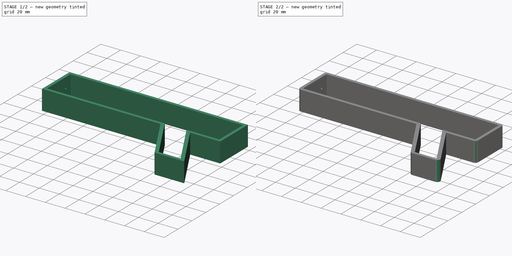
[diagram: build sequence overview — one tinted view per stage of 2, left to right]
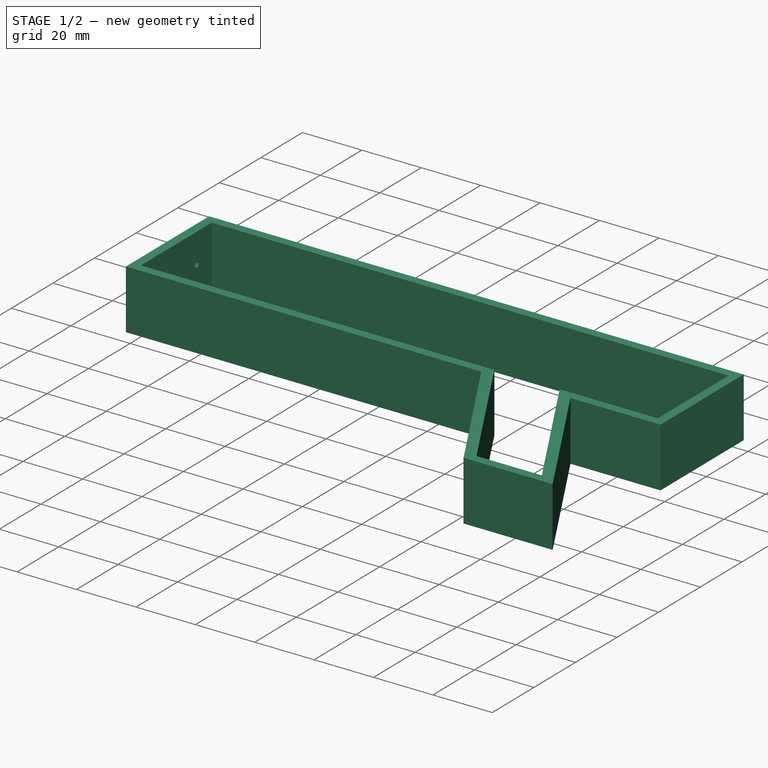
[diagram: stage 1 of 2 — iso view after this stage's code; geometry added in this stage tinted green]
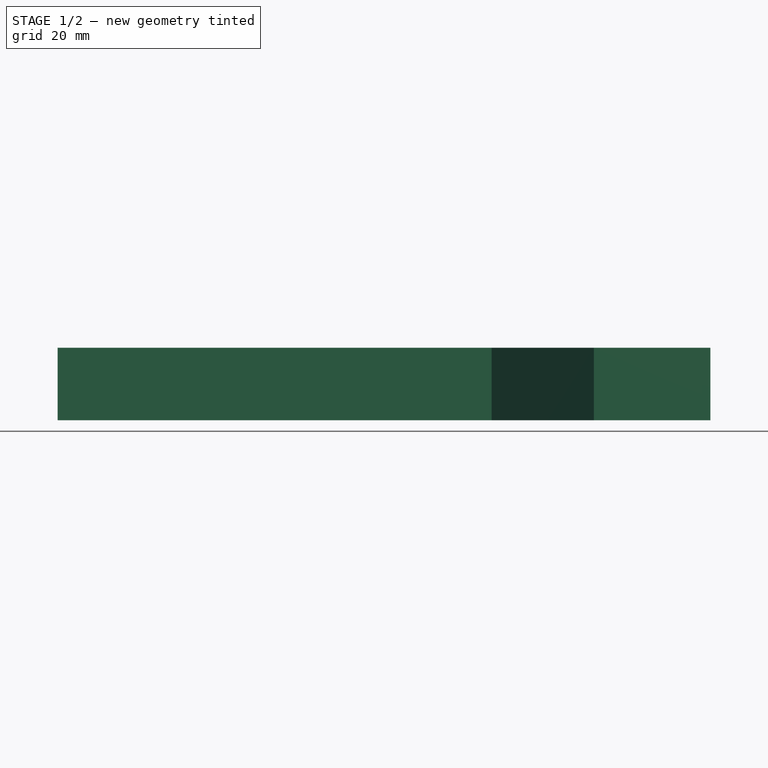
[diagram: stage 1 of 2 — front view after this stage's code; geometry added in this stage tinted green]
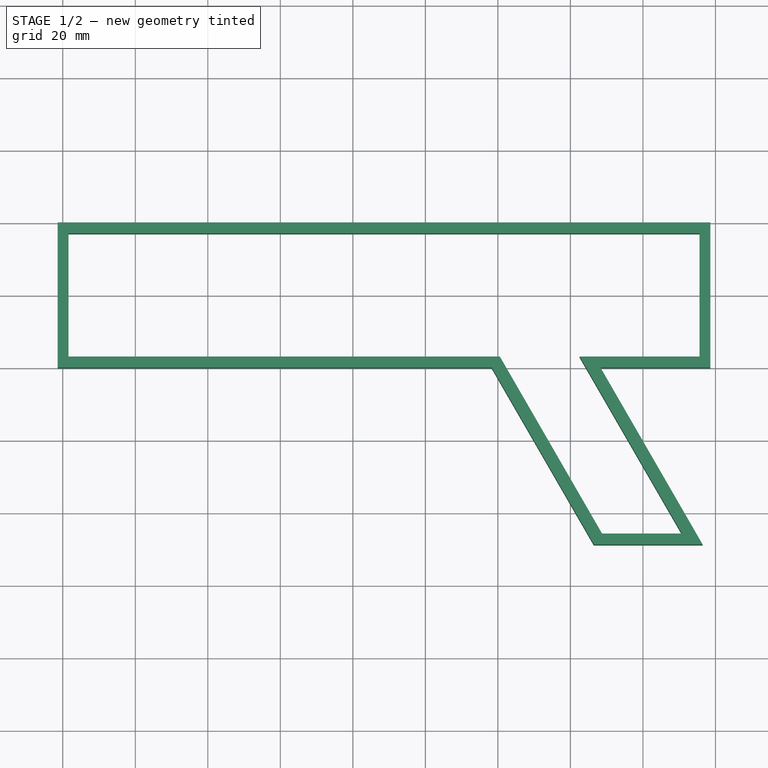
[diagram: stage 1 of 2 — top view after this stage's code; geometry added in this stage tinted green]
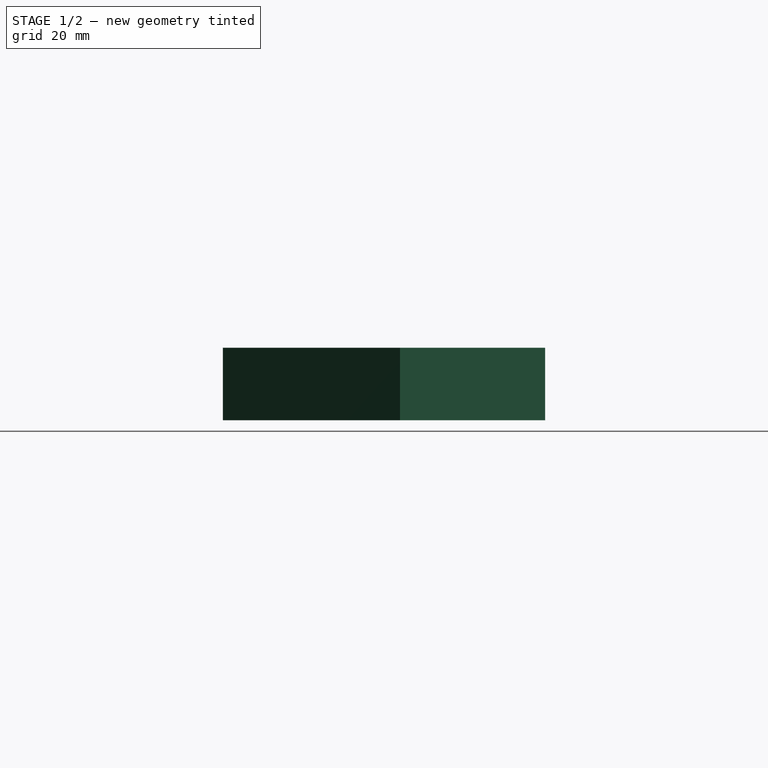
[diagram: stage 1 of 2 — right view after this stage's code; geometry added in this stage tinted green]
FCSTD DOCUMENT  (FreeCAD 0.15R4671 (Git))
Label: Lasertag
License: All rights reserved
LicenseURL: http://en.wikipedia.org/wiki/All_rights_reserved
objects: Sketcher::SketchObject×2, PartDesign::Pad×1, App::MeasureDistance×1, PartDesign::Pocket×1, PartDesign::Fillet×1
note: 7 computed .brp shape members not serialized (recipe doc carries the construction recipe); baked Part::Feature solids carry a one-line shape summary decoded from their .brp

FEATURE [Sketcher::SketchObject] Sketch
  sketch-geometry (25):
    g0: LineSegment StartX=58.5905 StartY=0 StartZ=0 EndX=58.5905 EndY=40 EndZ=0
    g1: LineSegment StartX=58.5905 StartY=40 StartZ=0 EndX=-121.41 EndY=40 EndZ=0
    g2: LineSegment StartX=-121.41 StartY=40 StartZ=0 EndX=-121.41 EndY=0 EndZ=0
    g3: LineSegment StartX=28.2664 StartY=0 StartZ=0 EndX=56.4701 EndY=-48.8503 EndZ=0
    g4: LineSegment StartX=56.4701 StartY=-48.8503 StartZ=0 EndX=26.4701 EndY=-48.8503 EndZ=0
    g5: LineSegment StartX=26.4701 StartY=-48.8503 StartZ=0 EndX=-1.7336 EndY=0 EndZ=0
    g6: LineSegment [constr] StartX=56.4701 StartY=0 StartZ=0 EndX=56.4701 EndY=-73.0799 EndZ=0
    g7: LineSegment StartX=-118.41 StartY=37 StartZ=0 EndX=55.5905 EndY=37 EndZ=0
    g8: LineSegment StartX=55.5905 StartY=37 StartZ=0 EndX=55.5905 EndY=3 EndZ=0
    g9: LineSegment StartX=55.5905 StartY=3 StartZ=0 EndX=22.5344 EndY=3 EndZ=0
    g10: LineSegment StartX=22.5344 StartY=3 StartZ=0 EndX=50.7381 EndY=-45.8503 EndZ=0
    g11: LineSegment StartX=50.7381 StartY=-45.8503 StartZ=0 EndX=28.7381 EndY=-45.8503 EndZ=0
    g12: LineSegment StartX=28.7381 StartY=-45.8503 StartZ=0 EndX=0.534352 EndY=3 EndZ=0
    g13: LineSegment StartX=0.534352 StartY=3 StartZ=0 EndX=-118.41 EndY=3 EndZ=0
    g14: LineSegment StartX=-118.41 StartY=3 StartZ=0 EndX=-118.41 EndY=37 EndZ=0
    g15: LineSegment [constr] StartX=-118.41 StartY=24.9388 StartZ=0 EndX=-121.41 EndY=24.9388 EndZ=0
    g16: LineSegment [constr] StartX=-75.524 StartY=37 StartZ=0 EndX=-75.524 EndY=40 EndZ=0
    g17: LineSegment [constr] StartX=4.74691 StartY=-11.2246 StartZ=0 EndX=7.74691 EndY=-9.49252 EndZ=0
    g18: LineSegment [constr] StartX=35.867 StartY=-20.0929 StartZ=0 EndX=38.867 EndY=-18.3609 EndZ=0
    g19: LineSegment [constr] StartX=55.5905 StartY=9.67422 StartZ=0 EndX=58.5905 EndY=9.67422 EndZ=0
    g20: LineSegment [constr] StartX=41.3778 StartY=-45.8503 StartZ=0 EndX=41.3778 EndY=-48.8503 EndZ=0
    g21: LineSegment StartX=58.5905 StartY=0 StartZ=0 EndX=28.2664 EndY=0 EndZ=0
    g22: LineSegment StartX=-121.41 StartY=0 StartZ=0 EndX=-1.7336 EndY=0 EndZ=0
    g23: LineSegment [constr] StartX=-30.1339 StartY=3 StartZ=0 EndX=-30.1339 EndY=0 EndZ=0
    g24: LineSegment [constr] StartX=42.3491 StartY=3 StartZ=0 EndX=42.3491 EndY=0 EndZ=0
  constraints (70):
    c: Coincident(g0,g1)
    c: Coincident(g1,g2)
    c: Horizontal(g1)
    c: Vertical(g0)
    c: Vertical(g2)
    c: PointOnObject(g2,g-1)
    c: DistanceX(g1) = -180
    c: Coincident(g3,g4)
    c: Horizontal(g4)
    c: Coincident(g4,g5)
    c: Parallel(g3,g5)
    c: DistanceX(g4) = -30
    c: DistanceX(g5,g3) = 30
    c: Vertical(g6)
    c: PointOnObject(g3,g6)
    c: Horizontal(g7)
    c: Coincident(g7,g8)
    c: Vertical(g8)
    c: Coincident(g8,g9)
    c: Horizontal(g9)
    c: Coincident(g9,g10)
    c: Coincident(g10,g11)
    c: Horizontal(g11)
    c: Coincident(g11,g12)
    c: Coincident(g12,g13)
    c: Horizontal(g13)
    c: Coincident(g13,g14)
    c: Coincident(g14,g7)
    c: Parallel(g8,g14)
    c: PointOnObject(g15,g14)
    c: PointOnObject(g16,g7)
    c: PointOnObject(g16,g1)
    c: PointOnObject(g15,g2)
    c: Vertical(g16)
    c: DistanceX(g15) = -3
    c: DistanceY(g16) = 3
    c: PointOnObject(g17,g5)
    c: PointOnObject(g17,g12)
    c: DistanceX(g17) = 3
    c: Parallel(g5,g12)
    c: PointOnObject(g18,g10)
    c: PointOnObject(g18,g3)
    c: DistanceX(g18) = 3
    c: PointOnObject(g19,g8)
    c: PointOnObject(g19,g0)
    c: Horizontal(g19)
    c: DistanceX(g19) = 3
    c: Perpendicular(g5,g17)
    c: Perpendicular(g18,g3)
    c: PointOnObject(g20,g11)
    c: Vertical(g20)
    c: PointOnObject(g20,g4)
    c: DistanceY(g20) = -3
    c: Coincident(g21,g0)
    c: Coincident(g21,g3)
    c: Horizontal(g21)
    c: Coincident(g22,g2)
    c: Coincident(g22,g5)
    c: Horizontal(g22)
    c: Angle(g3,g21) = 1.0472
    c: PointOnObject(g23,g13)
    c: PointOnObject(g23,g22)
    c: PointOnObject(g24,g9)
    c: PointOnObject(g24,g21)
    c: DistanceY(g24) = -3
    c: Vertical(g24)
    c: Vertical(g23)
    c: DistanceY(g23) = -3
    c: DistanceY(g1,g2) = -40
    c: Parallel(g10,g3)
FEATURE [PartDesign::Pad] Pad
  Length = 20
  Length2 = 100
  Sketch = -> Sketch
  Type = 0
FEATURE [App::MeasureDistance] Distance  label="Distance: 56.445"
  Distance = 56.4447
  P1 = (-1.80796,0,20)
  P2 = (26.4701,-48.8503,20)
FEATURE [Sketcher::SketchObject] Sketch001
  ExternalGeometry = -> [Pad]
  Placement = pos=(-121.41,0,0) rot=(0.57735,-0.57735,-0.57735;2.0944rad)
  Support = -> Pad [Face4]
  sketch-geometry (6):
    g0: Circle CenterX=-30 CenterY=10 CenterZ=0 NormalX=0 NormalY=0 NormalZ=1 Radius=1
    g1: Circle CenterX=-10 CenterY=10 CenterZ=0 NormalX=0 NormalY=0 NormalZ=1 Radius=5
    g2: LineSegment [constr] StartX=-30 StartY=10 StartZ=0 EndX=-40 EndY=10 EndZ=0
    g3: LineSegment [constr] StartX=-10 StartY=10 StartZ=0 EndX=0 EndY=10 EndZ=0
    g4: LineSegment [constr] StartX=-10 StartY=20 StartZ=0 EndX=-10 EndY=10 EndZ=0
    g5: LineSegment [constr] StartX=-30 StartY=10 StartZ=0 EndX=-30 EndY=20 EndZ=0
  constraints (17):
    c: Radius(g0) = 1
    c: Radius(g1) = 5
    c: Coincident(g2,g0)
    c: PointOnObject(g2,g-3)
    c: Horizontal(g2)
    c: DistanceX(g2) = -10
    c: Coincident(g3,g1)
    c: PointOnObject(g3,g-4)
    c: Horizontal(g3)
    c: DistanceX(g3) = 10
    c: PointOnObject(g4,g-5)
    c: Coincident(g4,g1)
    c: Vertical(g4)
    c: DistanceY(g4) = -10
    c: Coincident(g5,g0)
    c: PointOnObject(g5,g-5)
    c: Vertical(g5)
FEATURE [PartDesign::Pocket] Pocket
  Length = 5
  Sketch = -> Sketch001
  Type = 0
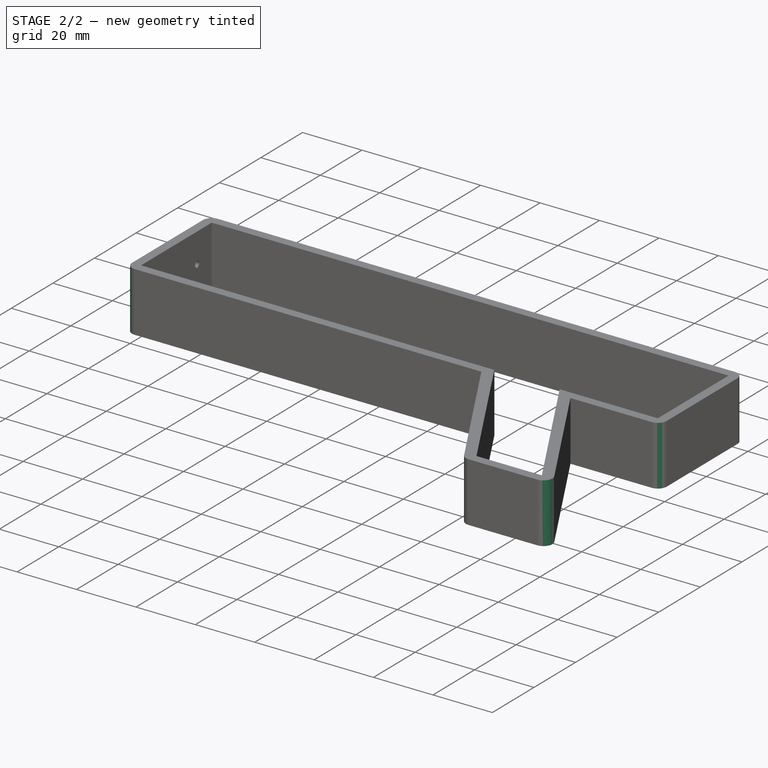
[diagram: stage 2 of 2 — iso view after this stage's code; geometry added in this stage tinted green]
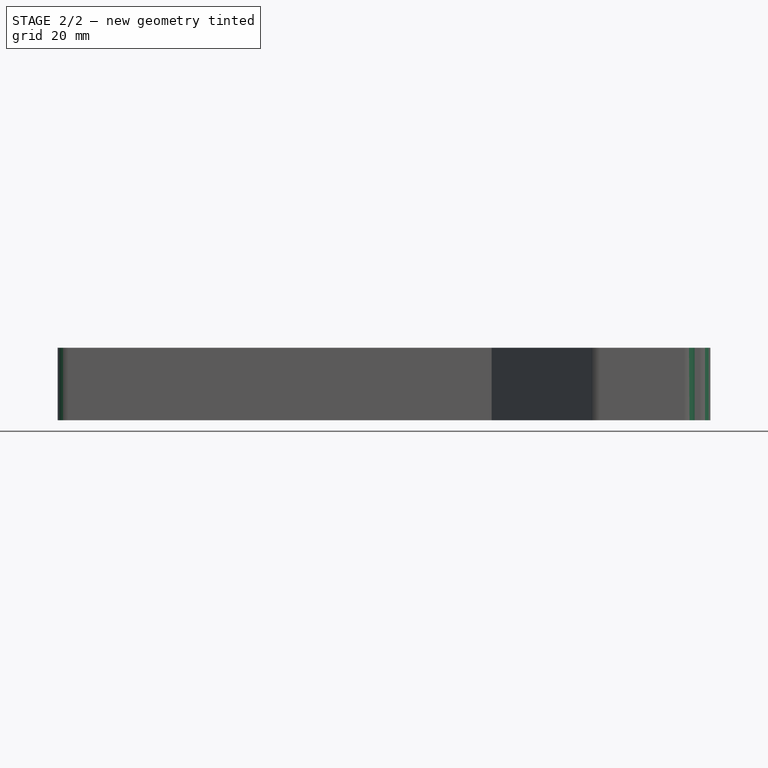
[diagram: stage 2 of 2 — front view after this stage's code; geometry added in this stage tinted green]
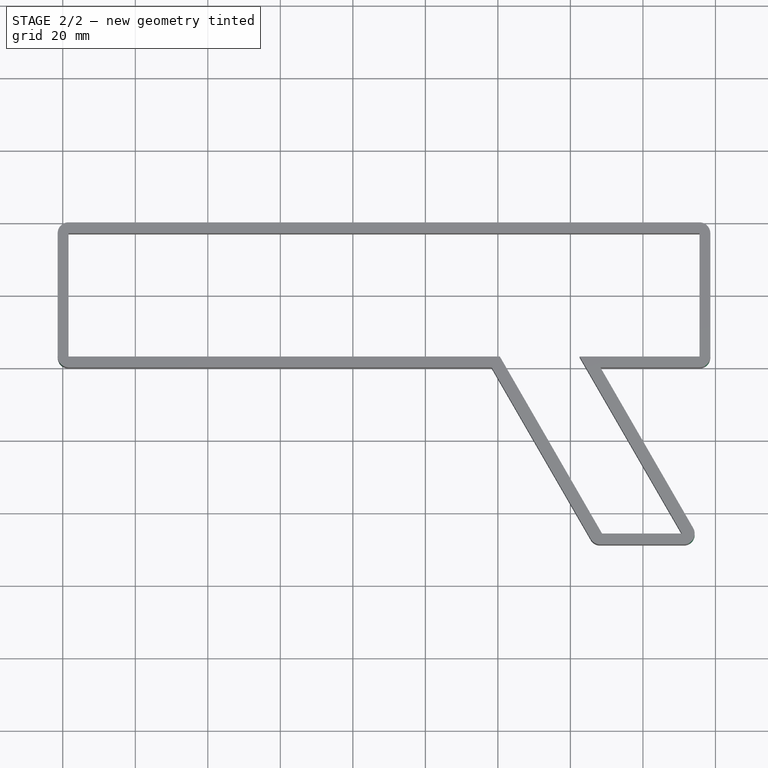
[diagram: stage 2 of 2 — top view after this stage's code; geometry added in this stage tinted green]
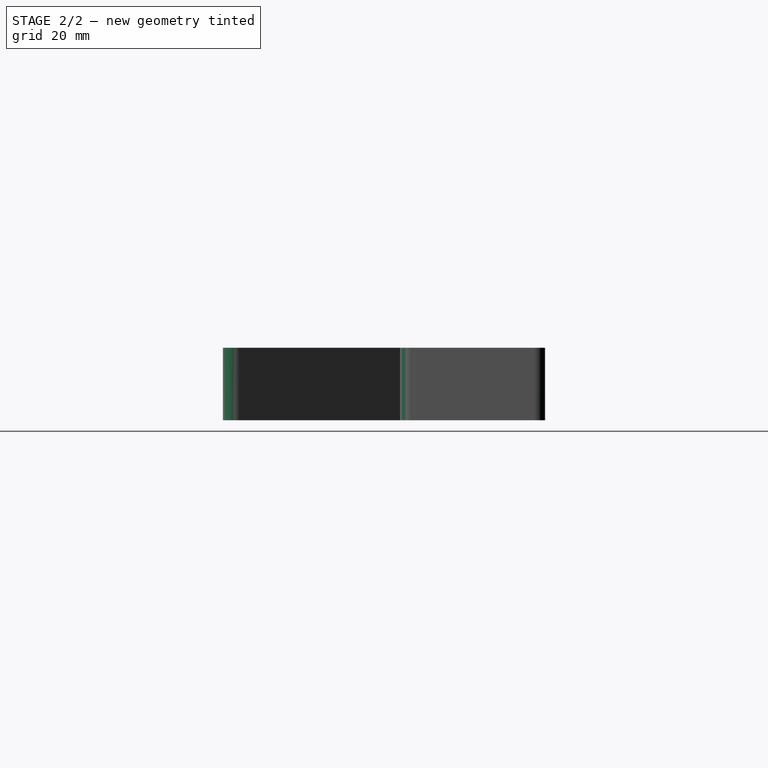
[diagram: stage 2 of 2 — right view after this stage's code; geometry added in this stage tinted green]
FEATURE [PartDesign::Fillet] Fillet
  Base = -> Pocket [Edge37,Edge39,Edge38,Edge8,Edge1,Edge5]
  Radius = 3
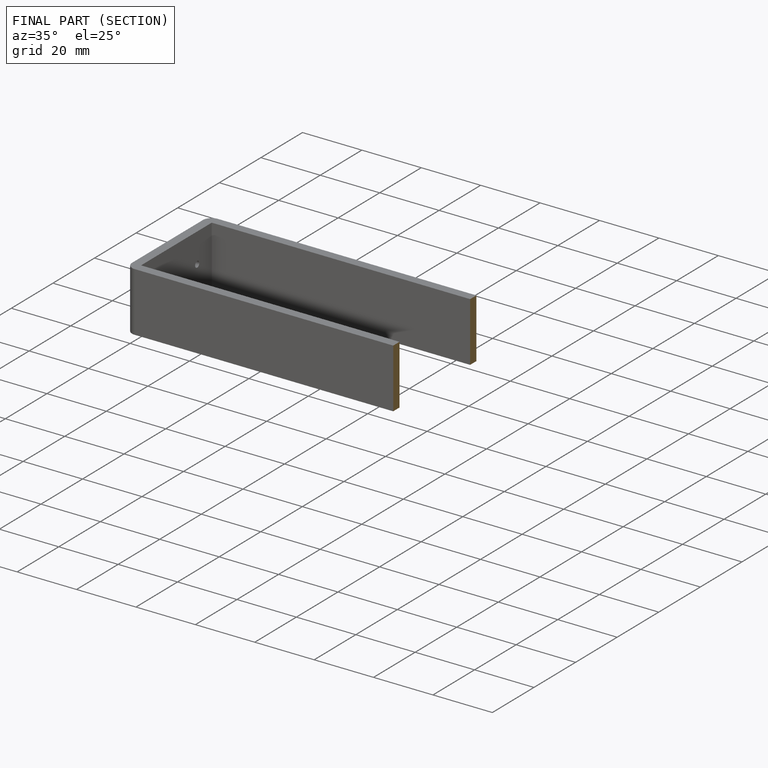
[diagram: finished part — half-section view (interior)]
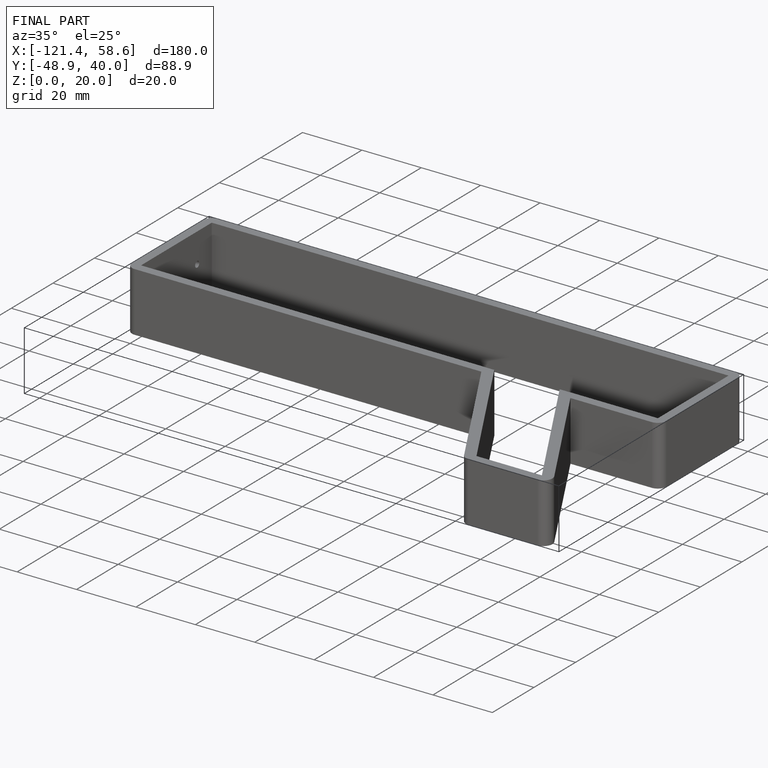
[diagram: finished part — iso view with bounding-box wireframe]
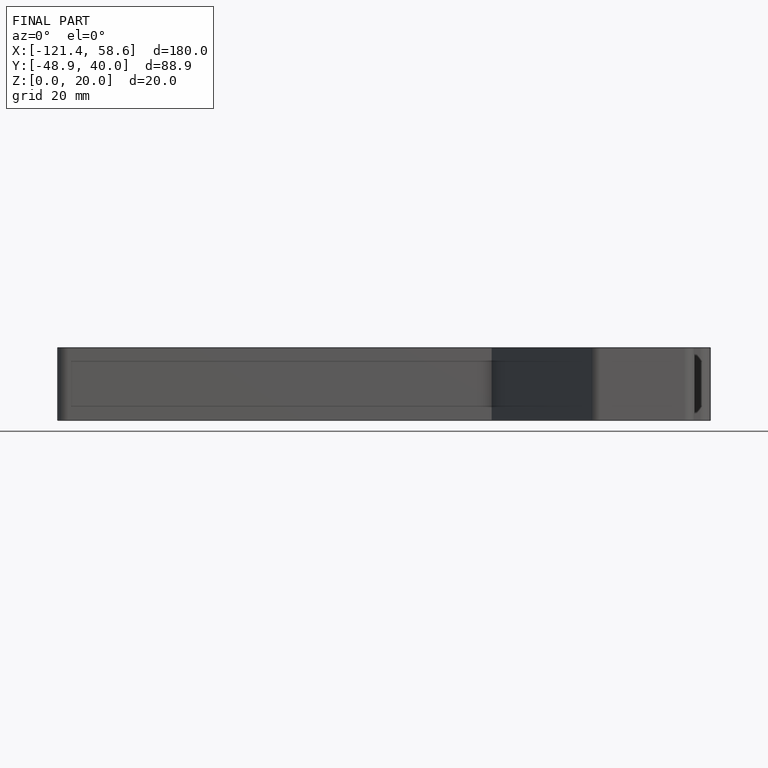
[diagram: finished part — front view with bounding-box wireframe]
